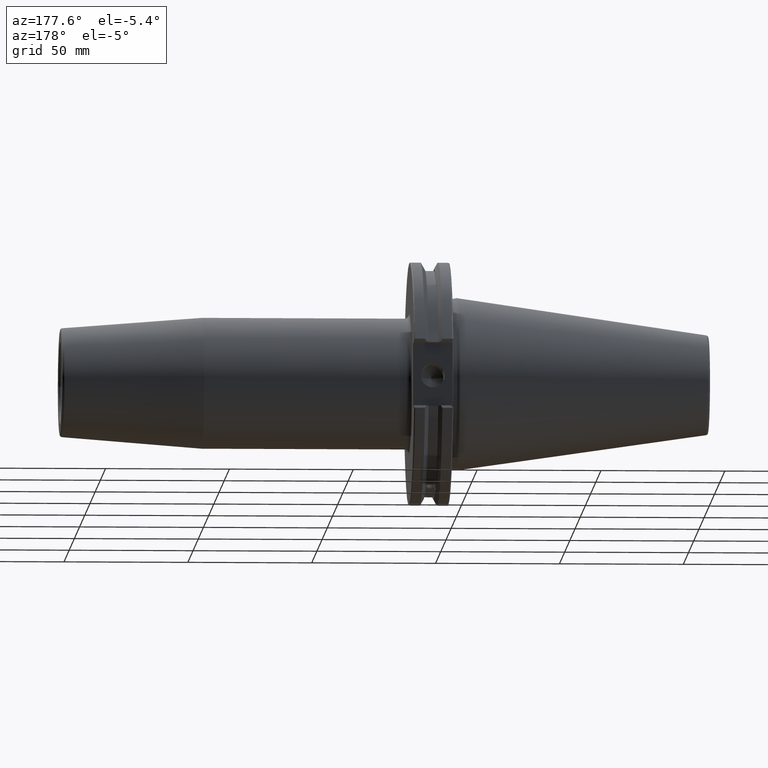
[diagram: clean part render]
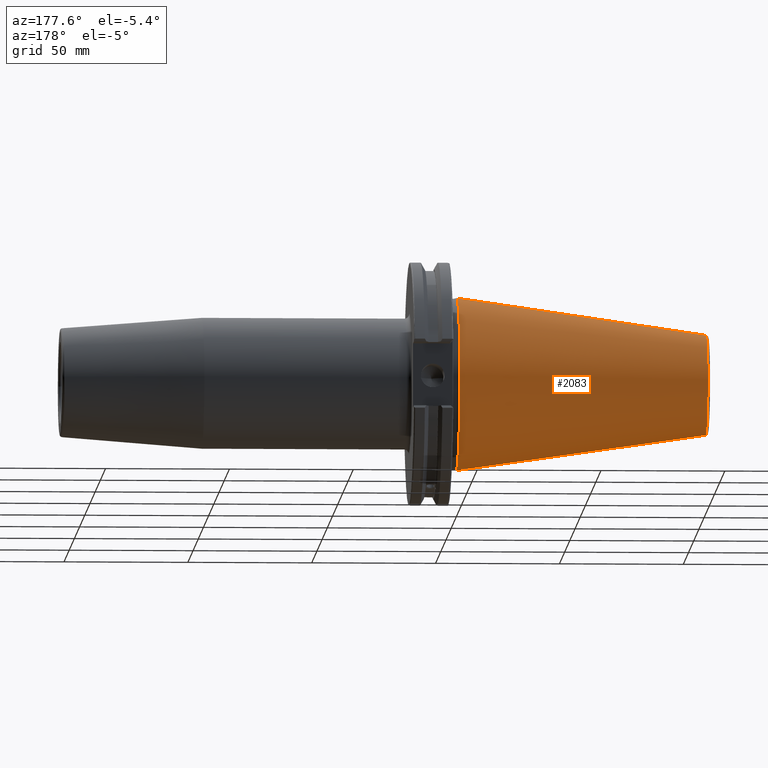
[diagram: same view with one face highlighted and labeled with its STEP entity id]
A machine part, auxiliary view. The second image highlights one B-rep face of the part: STEP entity #2083.
In plain terms, the highlighted conical surface has half-angle 8.297 deg.
Its self-contained STEP definition (entity closure, byte-faithful):
#2=CARTESIAN_POINT('',(-2.842170943040E-14,0.E0,0.E0));
#3=DIRECTION('',(1.E0,0.E0,0.E0));
#4=DIRECTION('',(0.E0,0.E0,-1.E0));
#5=AXIS2_PLACEMENT_3D('',#2,#3,#4);
#7=CARTESIAN_POINT('',(-1.007443068936E2,0.E0,0.E0));
#8=DIRECTION('',(-1.E0,0.E0,0.E0));
#9=DIRECTION('',(0.E0,0.E0,1.E0));
#10=AXIS2_PLACEMENT_3D('',#7,#8,#9);
#25=DIRECTION('',(-9.895329809878E-1,-2.431978913261E-10,1.443068935895E-1));
#26=VECTOR('',#25,1.018099536145E2);
#27=CARTESIAN_POINT('',(8.029843456825E-10,2.477204833236E-8,
-3.492499999978E1));
#28=LINE('',#27,#26);
#34=DIRECTION('',(-9.895329809878E-1,2.431978882049E-10,-1.443068935895E-1));
#35=VECTOR('',#34,1.018099536145E2);
#36=CARTESIAN_POINT('',(8.029843456825E-10,-2.477204771811E-8,
3.492499999978E1));
#37=LINE('',#36,#35);
#1744=CARTESIAN_POINT('',(-1.007443068936E2,0.E0,-2.023312185719E1));
#1745=CARTESIAN_POINT('',(-1.007443068936E2,0.E0,2.023312185719E1));
#1746=VERTEX_POINT('',#1744);
#1747=VERTEX_POINT('',#1745);
#1748=CARTESIAN_POINT('',(6.536993168993E-13,0.E0,3.4925E1));
#1749=CARTESIAN_POINT('',(6.536993168993E-13,0.E0,-3.4925E1));
#1750=VERTEX_POINT('',#1748);
#1751=VERTEX_POINT('',#1749);
#2068=CARTESIAN_POINT('',(-5.037215344680E1,0.E0,0.E0));
#2069=DIRECTION('',(1.E0,0.E0,0.E0));
#2070=DIRECTION('',(0.E0,0.E0,1.E0));
#2071=AXIS2_PLACEMENT_3D('',#2068,#2069,#2070);
#2072=CONICAL_SURFACE('',#2071,2.757906092859E1,8.297145E0);
#2074=ORIENTED_EDGE('',*,*,#2073,.T.);
#2076=ORIENTED_EDGE('',*,*,#2075,.T.);
#2078=ORIENTED_EDGE('',*,*,#2077,.T.);
#2080=ORIENTED_EDGE('',*,*,#2079,.F.);
#2081=EDGE_LOOP('',(#2074,#2076,#2078,#2080));
#2082=FACE_OUTER_BOUND('',#2081,.F.);
#2083=ADVANCED_FACE('',(#2082),#2072,.T.);
#6=CIRCLE('',#5,3.4925E1);
#11=CIRCLE('',#10,2.023312185719E1);
#2073=EDGE_CURVE('',#1751,#1750,#6,.T.);
#2075=EDGE_CURVE('',#1750,#1747,#37,.T.);
#2077=EDGE_CURVE('',#1747,#1746,#11,.T.);
#2079=EDGE_CURVE('',#1751,#1746,#28,.T.);